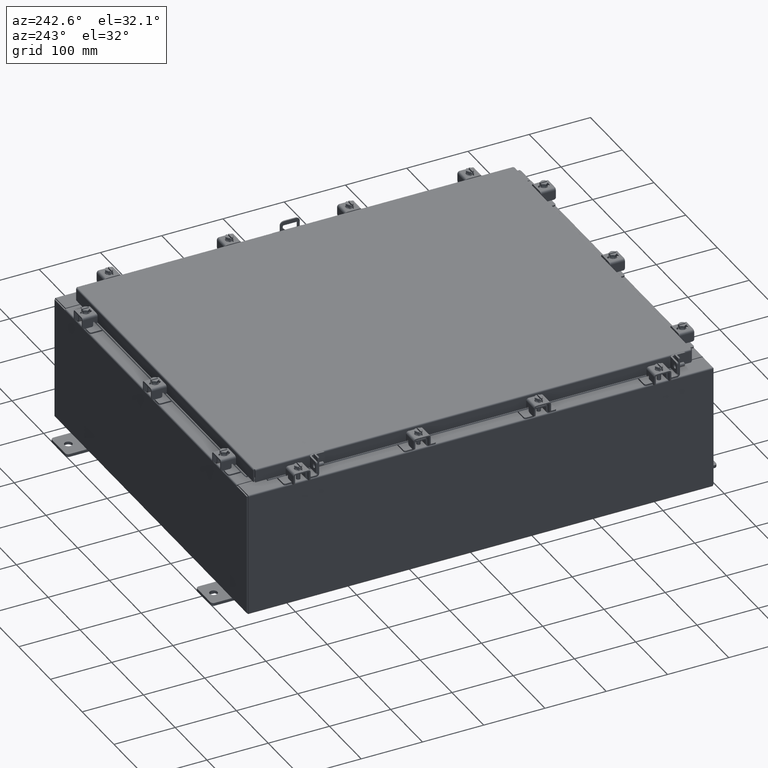
[diagram: clean part render]
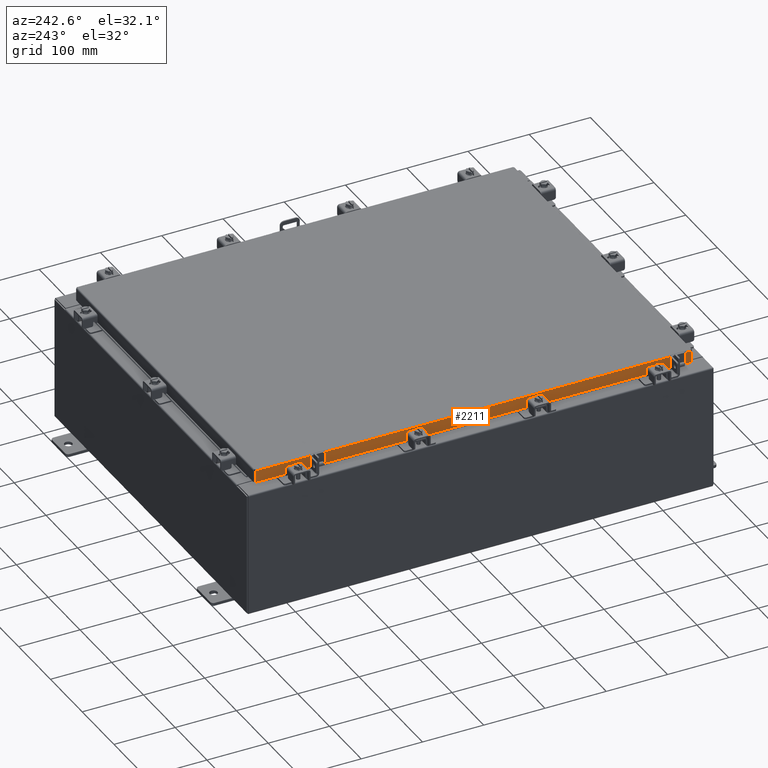
[diagram: same view with one face highlighted and labeled with its STEP entity id]
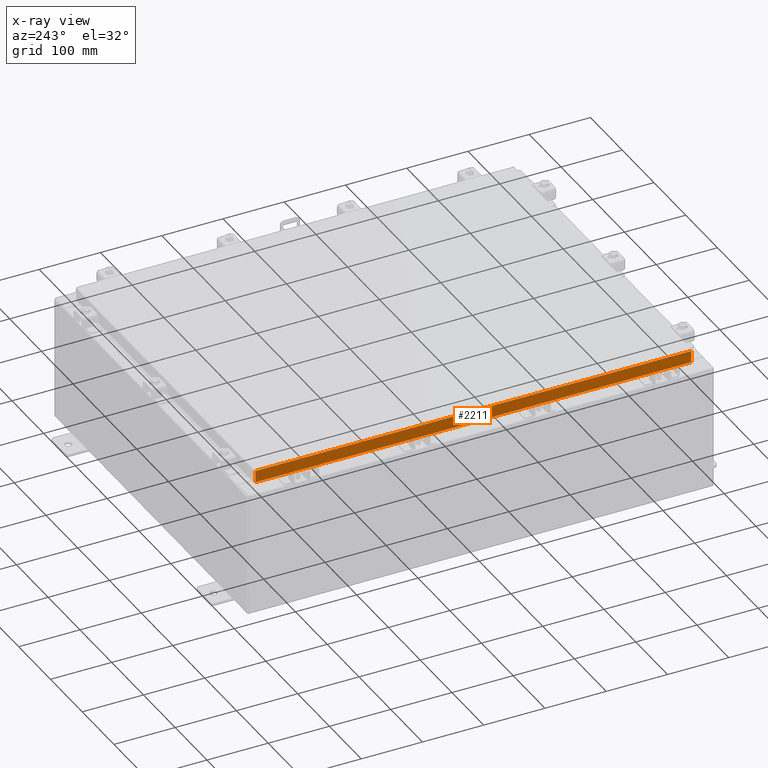
[diagram: x-ray of the same camera — body ghosted, the highlighted face saturated]
A machine part, auxiliary view. The second image highlights one B-rep face of the part: STEP entity #2211.
The next image is the same camera in x-ray: the body ghosted, the highlighted face saturated — about 0% of this face is hidden behind the body in this view.
In plain terms, the highlighted planar face has unit normal (1, 0, -0).
Its self-contained STEP definition (entity closure, byte-faithful):
#162 = DIRECTION ( 'NONE',  ( -2.818880942772360100E-015, 6.982962677686265900E-015, -1.000000000000000000 ) ) ;
#207 = EDGE_LOOP ( 'NONE', ( #2222, #15519, #22302, #14347, #11188, #10030 ) ) ;
#2211 = ADVANCED_FACE ( 'NONE', ( #9817 ), #17866, .F. ) ;
#2222 = ORIENTED_EDGE ( 'NONE', *, *, #21658, .F. ) ;
#2351 = AXIS2_PLACEMENT_3D ( 'NONE', #13005, #5979, #3045 ) ;
#2607 = VERTEX_POINT ( 'NONE', #8022 ) ;
#3045 = DIRECTION ( 'NONE',  ( -2.818880942772360100E-015, 0.0000000000000000000, -1.000000000000000000 ) ) ;
#3160 = CARTESIAN_POINT ( 'NONE',  ( -11.07800000000000300, -14.09399999999999600, -0.8499999999999996400 ) ) ;
#3316 = VERTEX_POINT ( 'NONE', #13729 ) ;
#4440 = VECTOR ( 'NONE', #8558, 39.37007874015748100 ) ;
#4846 = LINE ( 'NONE', #5707, #22760 ) ;
#5471 = CARTESIAN_POINT ( 'NONE',  ( -11.07799999999999600, 13.25515786437627400, -0.8500000000000012000 ) ) ;
#5707 = CARTESIAN_POINT ( 'NONE',  ( -11.07799999999999900, -14.09399999999999600, -0.08770000000000007000 ) ) ;
#5979 = DIRECTION ( 'NONE',  ( 1.000000000000000000, 3.414908049476327800E-031, -2.818880942772360100E-015 ) ) ;
#6110 = VECTOR ( 'NONE', #15686, 39.37007874015748100 ) ;
#6760 = CARTESIAN_POINT ( 'NONE',  ( -11.07799999999999600, -13.25515786437626200, -0.8500000000000012000 ) ) ;
#6826 = VECTOR ( 'NONE', #17592, 39.37007874015748100 ) ;
#8022 = CARTESIAN_POINT ( 'NONE',  ( -11.07799999999999900, 14.00515786437626900, -0.08770000000000007000 ) ) ;
#8089 = LINE ( 'NONE', #6760, #4440 ) ;
#8260 = VERTEX_POINT ( 'NONE', #10863 ) ;
#8558 = DIRECTION ( 'NONE',  ( -0.0000000000000000000, 1.000000000000000000, -0.0000000000000000000 ) ) ;
#8692 = CARTESIAN_POINT ( 'NONE',  ( -11.07800000000000300, -14.09399999999999600, -0.8499999999999996400 ) ) ;
#8910 = CARTESIAN_POINT ( 'NONE',  ( -11.07799999999999600, -13.25515786437625600, -0.8500000000000012000 ) ) ;
#9307 = EDGE_CURVE ( 'NONE', #15886, #14932, #20544, .T. ) ;
#9817 = FACE_OUTER_BOUND ( 'NONE', #207, .T. ) ;
#10030 = ORIENTED_EDGE ( 'NONE', *, *, #17302, .F. ) ;
#10863 = CARTESIAN_POINT ( 'NONE',  ( -11.07799999999999900, -14.00515786437626400, -0.08770000000000007000 ) ) ;
#10890 = LINE ( 'NONE', #3160, #6110 ) ;
#11188 = ORIENTED_EDGE ( 'NONE', *, *, #9307, .F. ) ;
#12433 = VECTOR ( 'NONE', #22989, 39.37007874015748100 ) ;
#12882 = LINE ( 'NONE', #14475, #21820 ) ;
#13005 = CARTESIAN_POINT ( 'NONE',  ( -11.07799999999999900, -3.783035137209876100E-030, 3.148837674004379000E-014 ) ) ;
#13171 = CARTESIAN_POINT ( 'NONE',  ( -11.07800000000000300, -14.00515786437626200, -0.8499999999999996400 ) ) ;
#13588 = EDGE_CURVE ( 'NONE', #14932, #15974, #8089, .T. ) ;
#13729 = CARTESIAN_POINT ( 'NONE',  ( -11.07800000000000300, 14.00515786437627400, -0.8499999999999963100 ) ) ;
#14347 = ORIENTED_EDGE ( 'NONE', *, *, #13588, .F. ) ;
#14475 = CARTESIAN_POINT ( 'NONE',  ( -11.07799999999999900, -14.00515786437626500, -0.07469999999999978000 ) ) ;
#14932 = VERTEX_POINT ( 'NONE', #8910 ) ;
#15519 = ORIENTED_EDGE ( 'NONE', *, *, #21393, .T. ) ;
#15686 = DIRECTION ( 'NONE',  ( -0.0000000000000000000, 1.000000000000000000, 1.211441035930299800E-016 ) ) ;
#15886 = VERTEX_POINT ( 'NONE', #13171 ) ;
#15974 = VERTEX_POINT ( 'NONE', #5471 ) ;
#16420 = DIRECTION ( 'NONE',  ( 3.414908049476327800E-031, -1.000000000000000000, -9.308245715024052500E-046 ) ) ;
#17302 = EDGE_CURVE ( 'NONE', #8260, #15886, #12882, .T. ) ;
#17592 = DIRECTION ( 'NONE',  ( -0.0000000000000000000, 1.000000000000000000, 1.211441035930299800E-016 ) ) ;
#17866 = PLANE ( 'NONE',  #2351 ) ;
#18218 = EDGE_CURVE ( 'NONE', #15974, #3316, #10890, .T. ) ;
#20544 = LINE ( 'NONE', #8692, #6826 ) ;
#21203 = CARTESIAN_POINT ( 'NONE',  ( -11.07799999999999900, 14.00515786437626900, 1.292858714020875700E-013 ) ) ;
#21393 = EDGE_CURVE ( 'NONE', #2607, #3316, #21935, .T. ) ;
#21658 = EDGE_CURVE ( 'NONE', #2607, #8260, #4846, .T. ) ;
#21820 = VECTOR ( 'NONE', #162, 39.37007874015748100 ) ;
#21935 = LINE ( 'NONE', #21203, #12433 ) ;
#22302 = ORIENTED_EDGE ( 'NONE', *, *, #18218, .F. ) ;
#22760 = VECTOR ( 'NONE', #16420, 39.37007874015748100 ) ;
#22989 = DIRECTION ( 'NONE',  ( -2.818880942772360100E-015, 6.982962677686265900E-015, -1.000000000000000000 ) ) ;